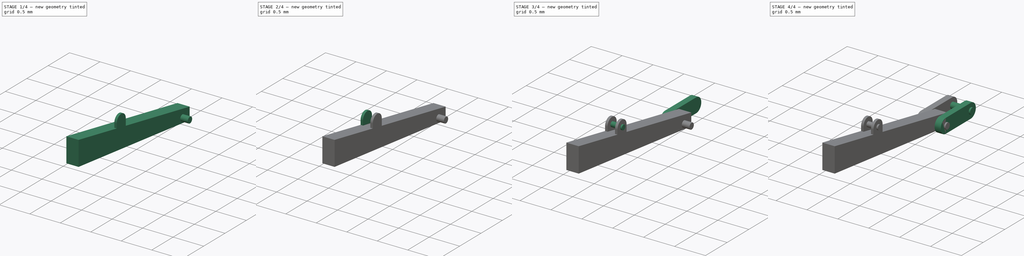
[diagram: build sequence overview — one tinted view per stage of 4, left to right]
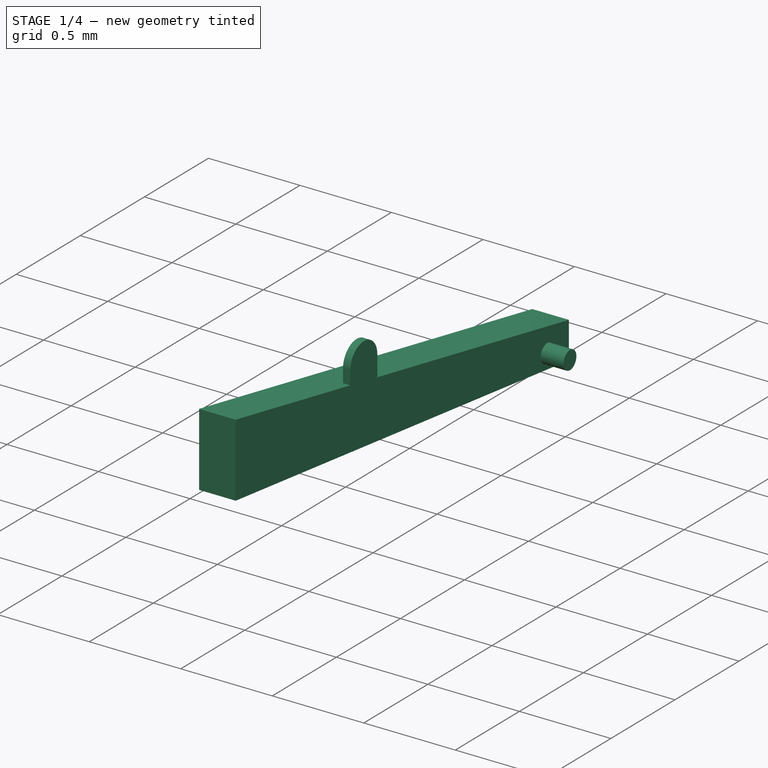
[diagram: stage 1 of 4 — iso view after this stage's code; geometry added in this stage tinted green]
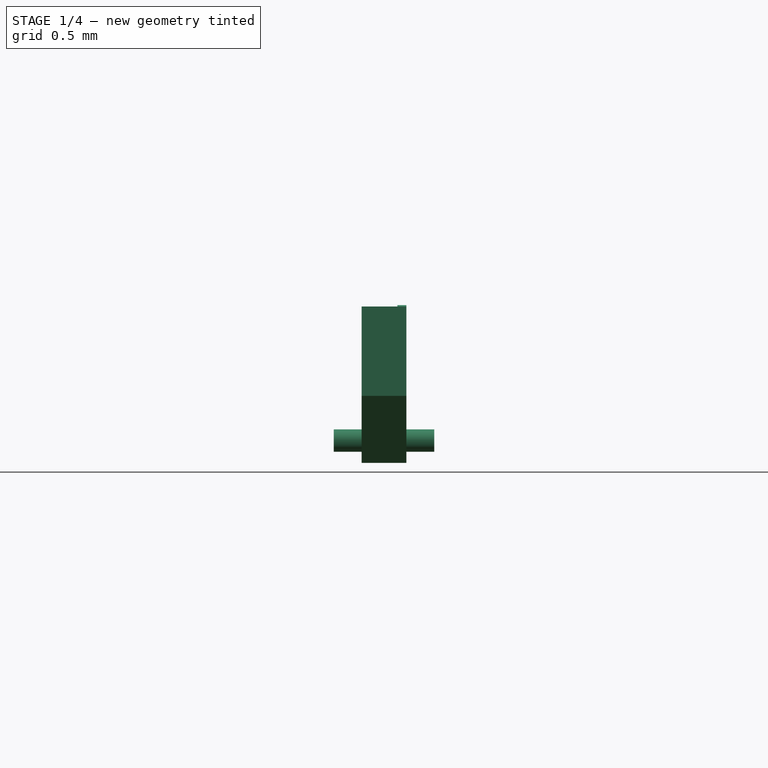
[diagram: stage 1 of 4 — front view after this stage's code; geometry added in this stage tinted green]
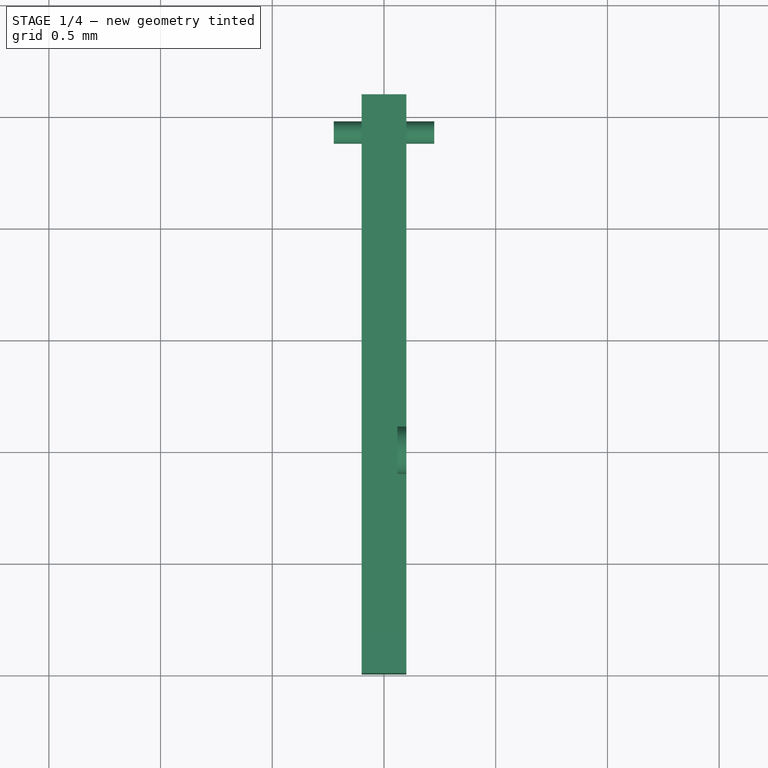
[diagram: stage 1 of 4 — top view after this stage's code; geometry added in this stage tinted green]
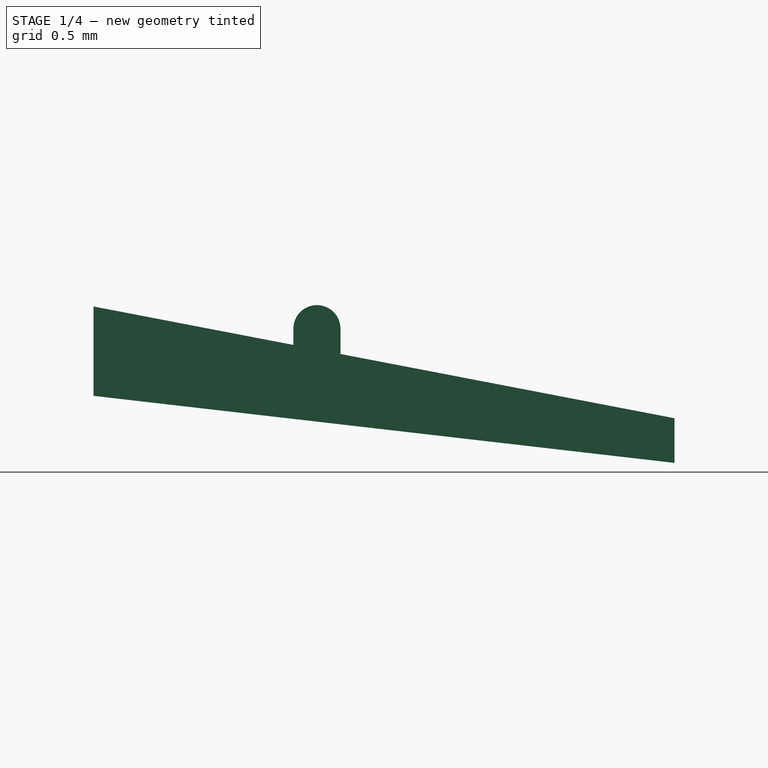
[diagram: stage 1 of 4 — right view after this stage's code; geometry added in this stage tinted green]
FCSTD DOCUMENT  (FreeCAD 0.14R3702 (Git))
Label: boom
License: CC-BY 3.0
LicenseURL: http://creativecommons.org/licenses/by/3.0/
objects: Sketcher::SketchObject×6, PartDesign::Pad×6, Part::Cylinder×3, Part::Fuse×3
note: 24 computed .brp shape members not serialized (recipe doc carries the construction recipe); baked Part::Feature solids carry a one-line shape summary decoded from their .brp

FEATURE [Sketcher::SketchObject] Sketch003
  Placement = pos=(0,0,0) rot=(0.57735,0.57735,0.57735;2.0944rad)
  sketch-geometry (4):
    g0: LineSegment StartX=0 StartY=0.6 StartZ=0 EndX=0 EndY=0.2 EndZ=0
    g1: LineSegment StartX=0 StartY=0.2 StartZ=0 EndX=2.6 EndY=-0.1 EndZ=0
    g2: LineSegment StartX=2.6 StartY=-0.1 StartZ=0 EndX=2.6 EndY=0.1 EndZ=0
    g3: LineSegment StartX=2.6 StartY=0.1 StartZ=0 EndX=0 EndY=0.6 EndZ=0
  constraints (12):
    c: Coincident(g0,g1)
    c: Coincident(g1,g2)
    c: Coincident(g2,g3)
    c: Coincident(g3,g0)
    c: DistanceX(g0) = 0
    c: DistanceY(g0) = 0.6
    c: DistanceX(g0) = 0
    c: DistanceY(g0) = 0.2
    c: DistanceX(g2) = 2.6
    c: DistanceY(g2) = 0.1
    c: DistanceX(g1) = 2.6
    c: DistanceY(g1) = -0.1
FEATURE [PartDesign::Pad] Pad003
  Length = 0.2
  Length2 = 100
  Midplane = true
  Placement = pos=(0,0,0) rot=(0.57735,0.57735,0.57735;2.0944rad)
  Sketch = -> Sketch003
  Type = 0
FEATURE [Sketcher::SketchObject] Sketch004
  Placement = pos=(0.06,0,0) rot=(0.57735,0.57735,0.57735;2.0944rad)
  sketch-geometry (4):
    g0: ArcOfCircle CenterX=0.999811 CenterY=0.50089 CenterZ=0 NormalX=0 NormalY=0 NormalZ=1 Radius=0.105299 StartAngle=6.28319 EndAngle=9.42478
    g1: ArcOfCircle CenterX=0.999811 CenterY=0.396579 CenterZ=0 NormalX=0 NormalY=0 NormalZ=1 Radius=0.105299 StartAngle=3.14159 EndAngle=6.28319
    g2: LineSegment StartX=0.894512 StartY=0.50089 StartZ=0 EndX=0.894512 EndY=0.396579 EndZ=0
    g3: LineSegment StartX=1.10511 StartY=0.50089 StartZ=0 EndX=1.10511 EndY=0.396579 EndZ=0
  constraints (10):
    c: Tangent(g0,g2)
    c: Tangent(g0,g3)
    c: Tangent(g1,g2)
    c: Tangent(g1,g3)
    c: Coincident(g0,g3)
    c: Coincident(g0,g2)
    c: Coincident(g2,g1)
    c: Coincident(g3,g1)
    c: Vertical(g2)
    c: Equal(g0,g1)
FEATURE [PartDesign::Pad] Pad004
  Length = 0.04
  Length2 = 100
  Placement = pos=(0.06,0,0) rot=(0.57735,0.57735,0.57735;2.0944rad)
  Sketch = -> Sketch004
  Type = 0
FEATURE [Part::Cylinder] Cylinder
  Angle = 360
  Height = 0.45
  Placement = pos=(-0.225,2.43,0) rot=(0.57735,0.57735,0.57735;2.0944rad)
  Radius = 0.05
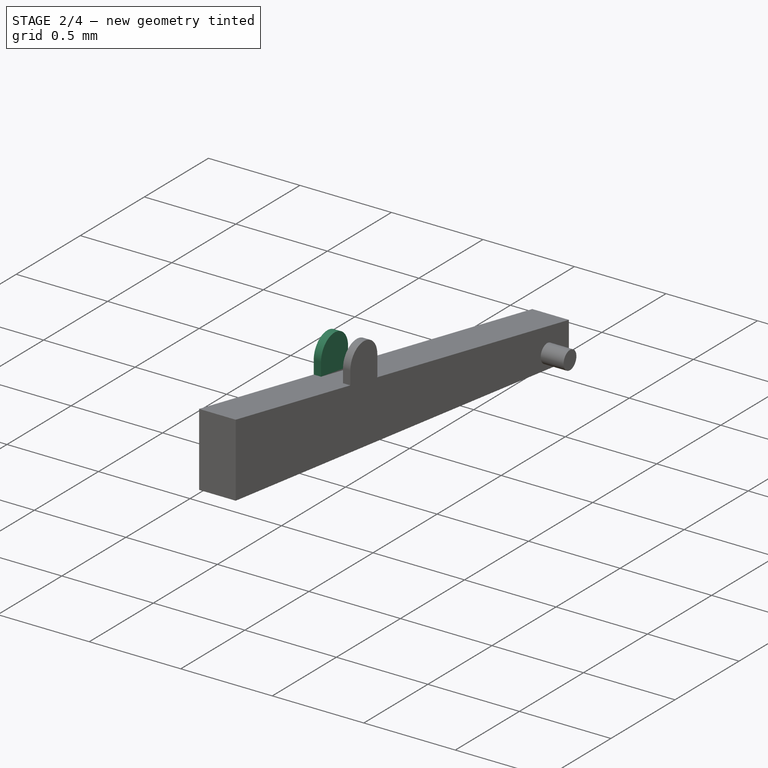
[diagram: stage 2 of 4 — iso view after this stage's code; geometry added in this stage tinted green]
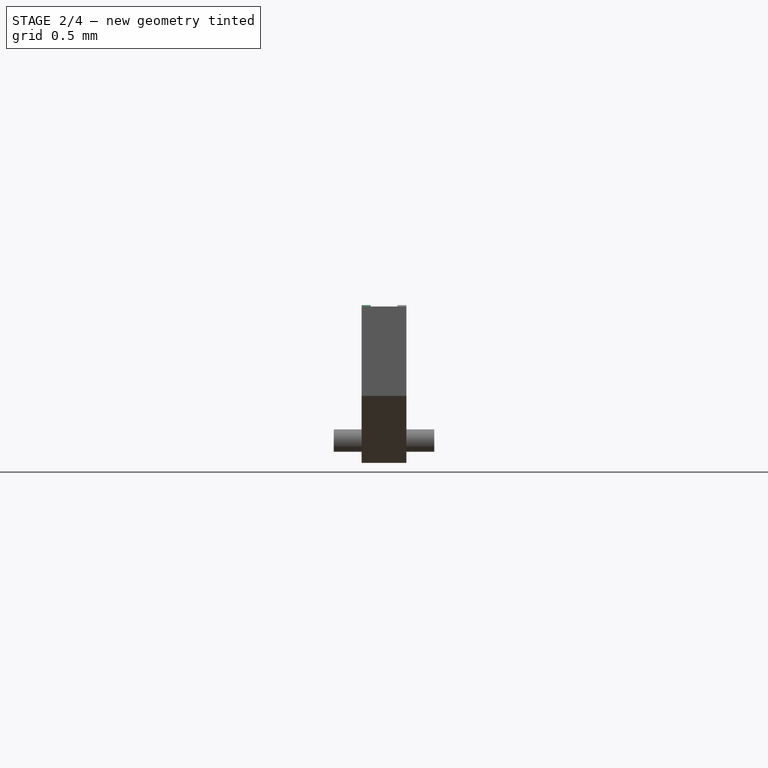
[diagram: stage 2 of 4 — front view after this stage's code; geometry added in this stage tinted green]
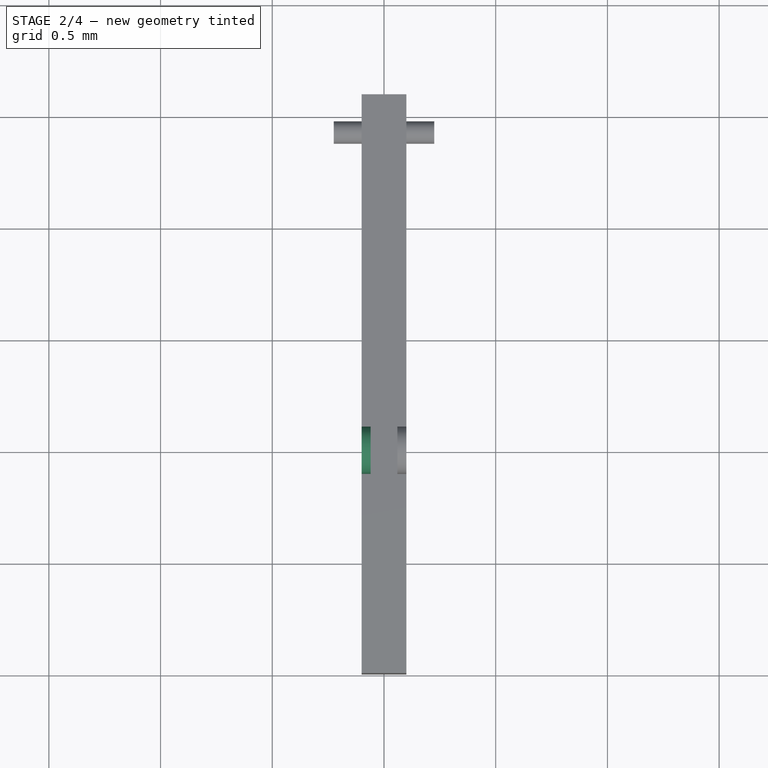
[diagram: stage 2 of 4 — top view after this stage's code; geometry added in this stage tinted green]
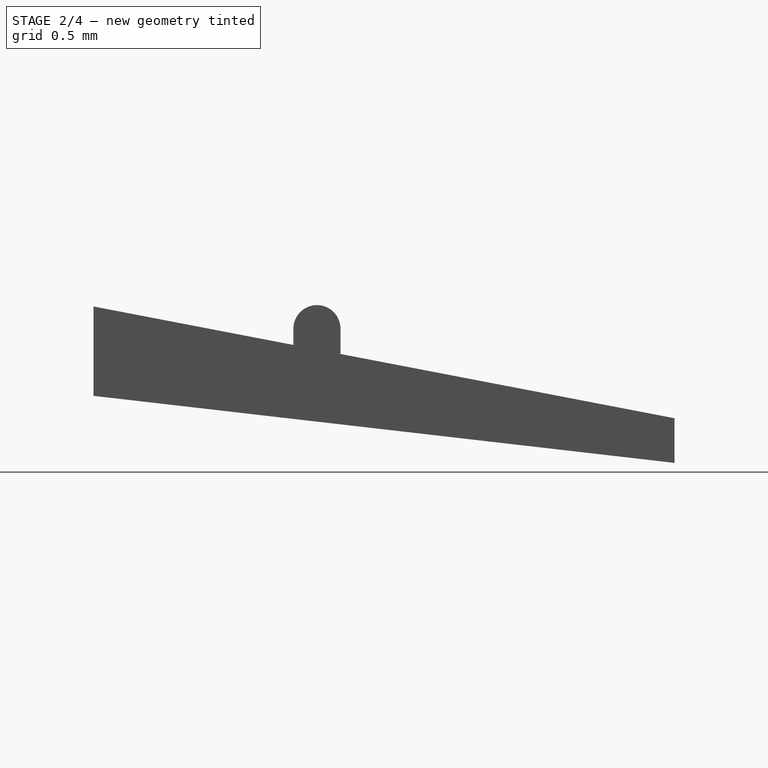
[diagram: stage 2 of 4 — right view after this stage's code; geometry added in this stage tinted green]
FEATURE [Sketcher::SketchObject] Sketch005
  Placement = pos=(-0.1,0,0) rot=(0.57735,0.57735,0.57735;2.0944rad)
  sketch-geometry (4):
    g0: ArcOfCircle CenterX=0.999811 CenterY=0.50089 CenterZ=0 NormalX=0 NormalY=0 NormalZ=1 Radius=0.105299 StartAngle=6.28319 EndAngle=9.42478
    g1: ArcOfCircle CenterX=0.999811 CenterY=0.396579 CenterZ=0 NormalX=0 NormalY=0 NormalZ=1 Radius=0.105299 StartAngle=3.14159 EndAngle=6.28319
    g2: LineSegment StartX=0.894512 StartY=0.50089 StartZ=0 EndX=0.894512 EndY=0.396579 EndZ=0
    g3: LineSegment StartX=1.10511 StartY=0.50089 StartZ=0 EndX=1.10511 EndY=0.396579 EndZ=0
  constraints (10):
    c: Tangent(g0,g2)
    c: Tangent(g0,g3)
    c: Tangent(g1,g2)
    c: Tangent(g1,g3)
    c: Coincident(g0,g3)
    c: Coincident(g0,g2)
    c: Coincident(g2,g1)
    c: Coincident(g3,g1)
    c: Vertical(g2)
    c: Equal(g0,g1)
FEATURE [PartDesign::Pad] Pad005
  Length = 0.04
  Length2 = 100
  Placement = pos=(-0.1,0,0) rot=(0.57735,0.57735,0.57735;2.0944rad)
  Sketch = -> Sketch005
  Type = 0
FEATURE [Part::Fuse] Fusion
  Base = -> Pad003
  Tool = -> Pad004
FEATURE [Part::Fuse] Fusion002
  Base = -> Pad005
  Tool = -> Fusion
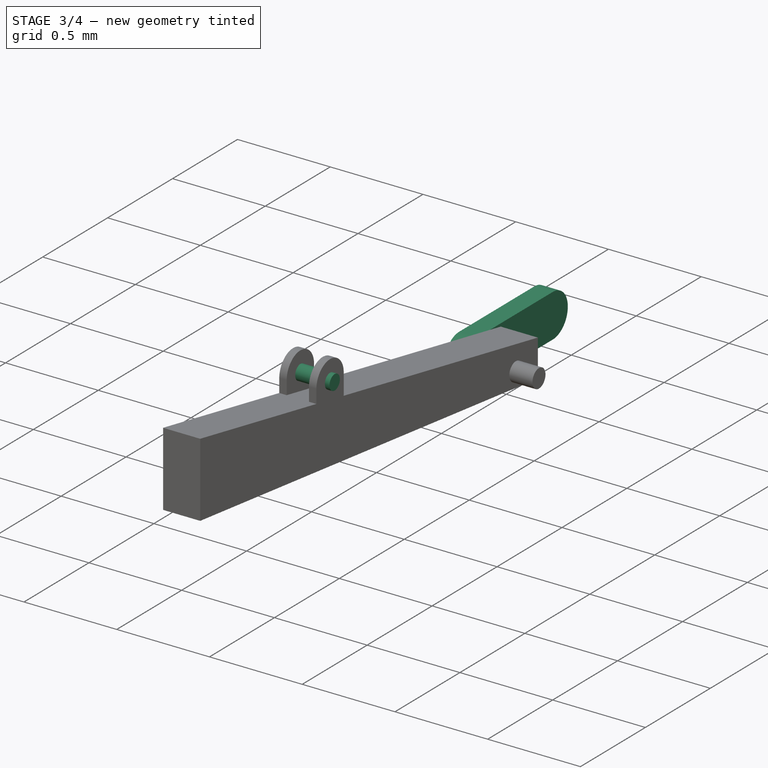
[diagram: stage 3 of 4 — iso view after this stage's code; geometry added in this stage tinted green]
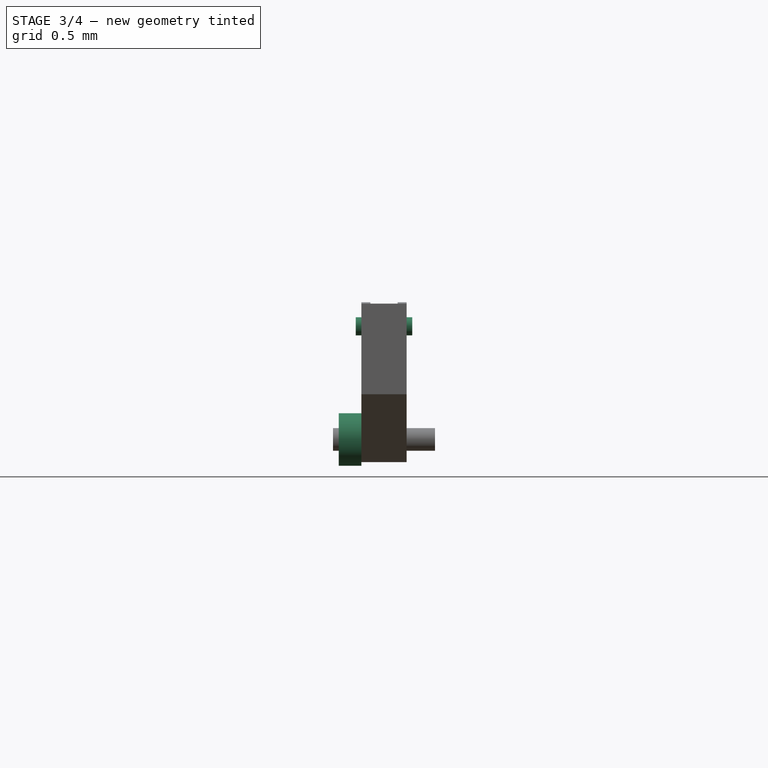
[diagram: stage 3 of 4 — front view after this stage's code; geometry added in this stage tinted green]
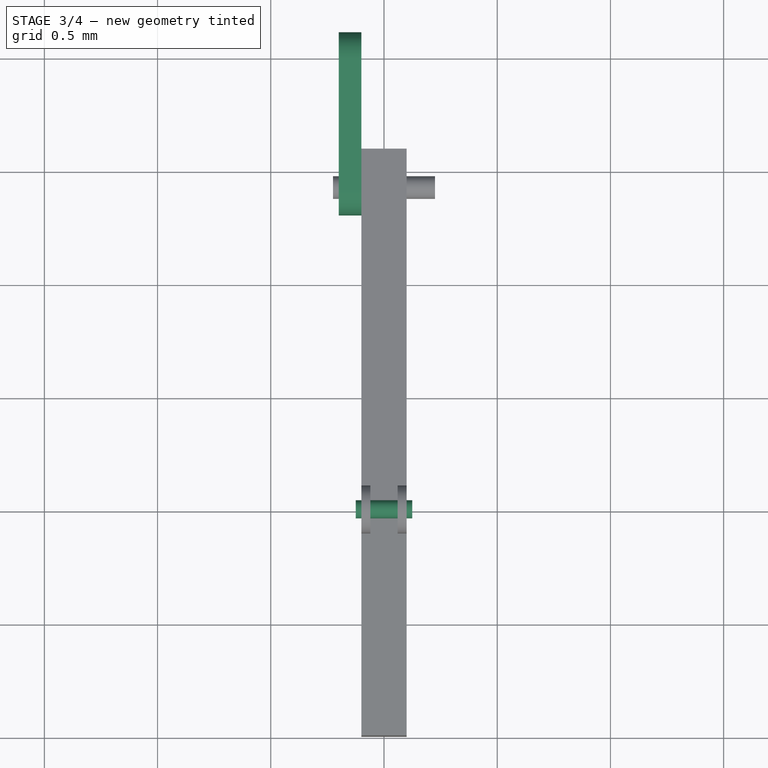
[diagram: stage 3 of 4 — top view after this stage's code; geometry added in this stage tinted green]
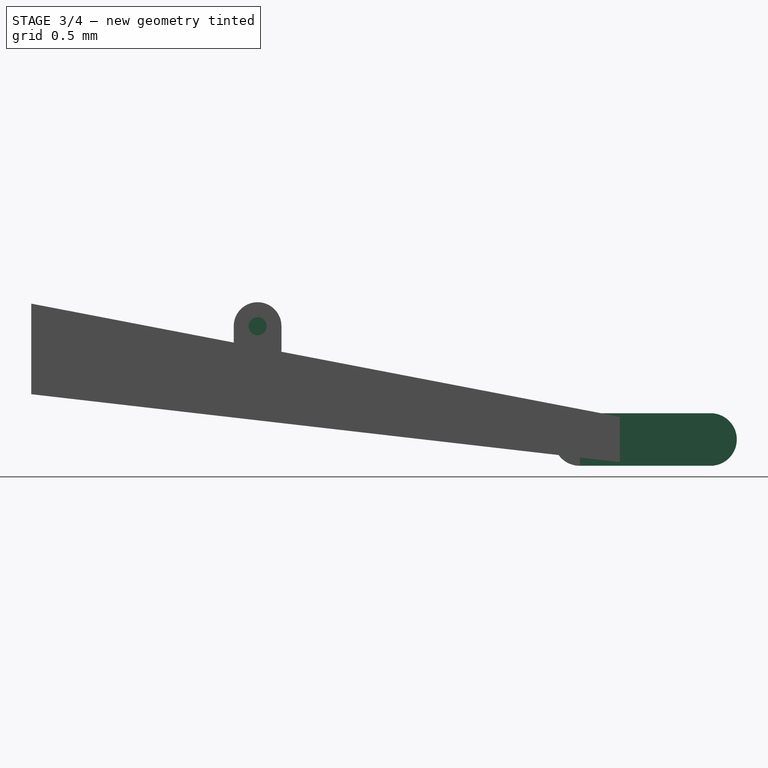
[diagram: stage 3 of 4 — right view after this stage's code; geometry added in this stage tinted green]
FEATURE [Sketcher::SketchObject] Sketch002
  Placement = pos=(-0.2,0,0) rot=(0.57735,0.57735,0.57735;2.0944rad)
  sketch-geometry (4):
    g0: ArcOfCircle CenterX=2.42285 CenterY=0 CenterZ=0 NormalX=0 NormalY=0 NormalZ=1 Radius=0.116102 StartAngle=1.5708 EndAngle=4.71239
    g1: ArcOfCircle CenterX=3.00001 CenterY=0 CenterZ=0 NormalX=0 NormalY=0 NormalZ=1 Radius=0.116102 StartAngle=4.71239 EndAngle=7.85398
    g2: LineSegment StartX=2.42285 StartY=-0.116102 StartZ=0 EndX=3.00001 EndY=-0.116102 EndZ=0
    g3: LineSegment StartX=2.42285 StartY=0.116102 StartZ=0 EndX=3.00001 EndY=0.116102 EndZ=0
  constraints (11):
    c: Tangent(g0,g2)
    c: Tangent(g0,g3)
    c: Tangent(g1,g2)
    c: Tangent(g1,g3)
    c: Coincident(g0,g3)
    c: Coincident(g0,g2)
    c: Coincident(g2,g1)
    c: Coincident(g3,g1)
    c: Horizontal(g2)
    c: Equal(g0,g1)
    c: Perpendicular(g1,g-1)
FEATURE [PartDesign::Pad] Pad002
  Length = 0.1
  Length2 = 100
  Placement = pos=(-0.2,0,0) rot=(0.57735,0.57735,0.57735;2.0944rad)
  Sketch = -> Sketch002
  Type = 0
FEATURE [Part::Cylinder] Cylinder003
  Angle = 360
  Height = 0.25
  Placement = pos=(-0.125,1,0.5) rot=(0.57735,0.57735,0.57735;2.0944rad)
  Radius = 0.04
FEATURE [Part::Fuse] Fusion001
  Base = -> Pad005
  Tool = -> Fusion
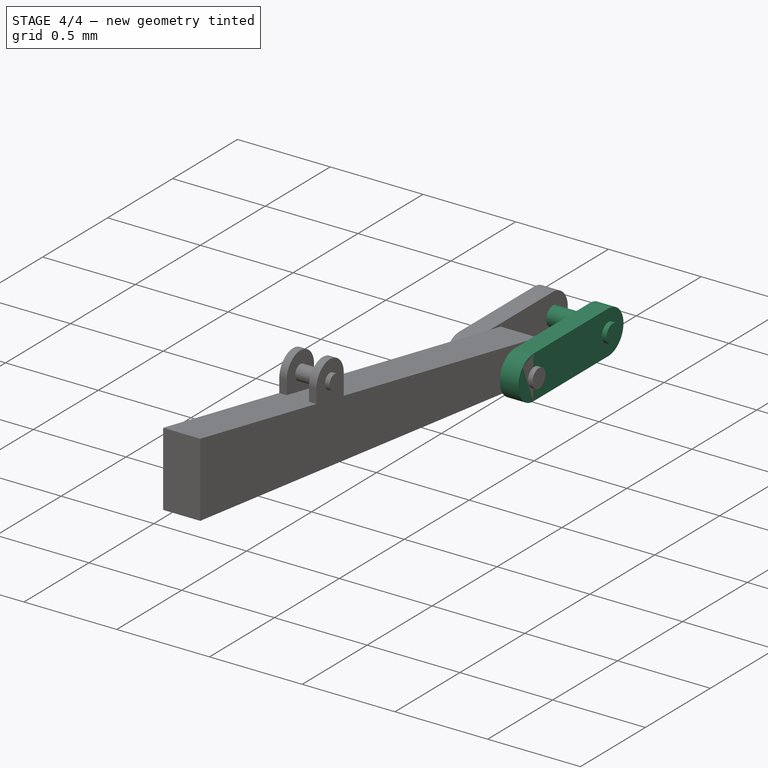
[diagram: stage 4 of 4 — iso view after this stage's code; geometry added in this stage tinted green]
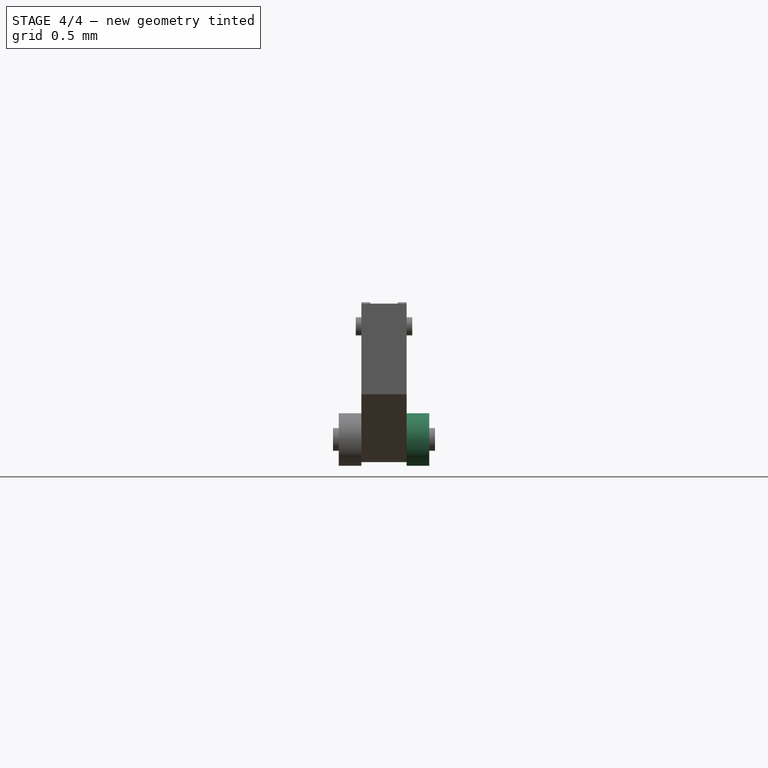
[diagram: stage 4 of 4 — front view after this stage's code; geometry added in this stage tinted green]
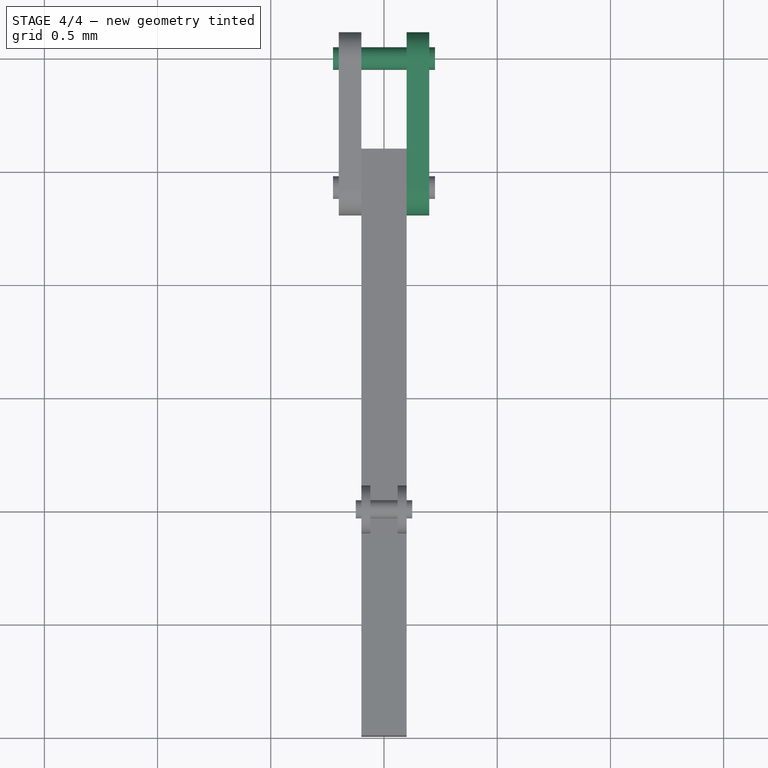
[diagram: stage 4 of 4 — top view after this stage's code; geometry added in this stage tinted green]
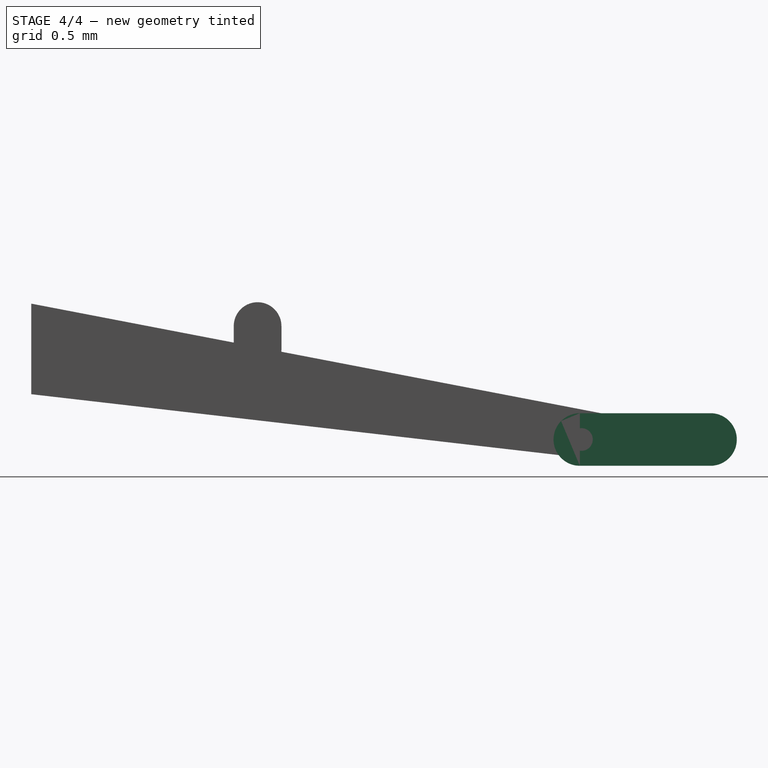
[diagram: stage 4 of 4 — right view after this stage's code; geometry added in this stage tinted green]
FEATURE [Sketcher::SketchObject] Sketch
  Placement = pos=(0,0,0) rot=(0.57735,0.57735,0.57735;2.0944rad)
  sketch-geometry (4):
    g0: LineSegment StartX=0 StartY=0.6 StartZ=0 EndX=0 EndY=0.2 EndZ=0
    g1: LineSegment StartX=0 StartY=0.2 StartZ=0 EndX=2.6 EndY=-0.1 EndZ=0
    g2: LineSegment StartX=2.6 StartY=-0.1 StartZ=0 EndX=2.6 EndY=0.1 EndZ=0
    g3: LineSegment StartX=2.6 StartY=0.1 StartZ=0 EndX=0 EndY=0.6 EndZ=0
  constraints (12):
    c: Coincident(g0,g1)
    c: Coincident(g1,g2)
    c: Coincident(g2,g3)
    c: Coincident(g3,g0)
    c: DistanceX(g0) = 0
    c: DistanceY(g0) = 0.6
    c: DistanceX(g0) = 0
    c: DistanceY(g0) = 0.2
    c: DistanceX(g2) = 2.6
    c: DistanceY(g2) = 0.1
    c: DistanceX(g1) = 2.6
    c: DistanceY(g1) = -0.1
FEATURE [PartDesign::Pad] Pad
  Length = 0.2
  Length2 = 100
  Midplane = true
  Placement = pos=(0,0,0) rot=(0.57735,0.57735,0.57735;2.0944rad)
  Sketch = -> Sketch
  Type = 0
FEATURE [Sketcher::SketchObject] Sketch001
  Placement = pos=(0.1,0,0) rot=(0.57735,0.57735,0.57735;2.0944rad)
  sketch-geometry (4):
    g0: ArcOfCircle CenterX=2.42285 CenterY=0 CenterZ=0 NormalX=0 NormalY=0 NormalZ=1 Radius=0.116102 StartAngle=1.57079 EndAngle=4.71239
    g1: ArcOfCircle CenterX=3.00001 CenterY=0 CenterZ=0 NormalX=0 NormalY=0 NormalZ=1 Radius=0.116102 StartAngle=4.71239 EndAngle=7.85398
    g2: LineSegment StartX=2.42285 StartY=-0.116102 StartZ=0 EndX=3.00001 EndY=-0.116102 EndZ=0
    g3: LineSegment StartX=2.42285 StartY=0.116102 StartZ=0 EndX=3.00001 EndY=0.116102 EndZ=0
  constraints (11):
    c: Tangent(g0,g2)
    c: Tangent(g0,g3)
    c: Tangent(g1,g2)
    c: Tangent(g1,g3)
    c: Coincident(g0,g3)
    c: Coincident(g0,g2)
    c: Coincident(g2,g1)
    c: Coincident(g3,g1)
    c: Horizontal(g2)
    c: Equal(g0,g1)
    c: Perpendicular(g-1,g0)
FEATURE [PartDesign::Pad] Pad001
  Length = 0.1
  Length2 = 100
  Placement = pos=(0.1,0,0) rot=(0.57735,0.57735,0.57735;2.0944rad)
  Sketch = -> Sketch001
  Type = 0
FEATURE [Part::Cylinder] Cylinder001
  Angle = 360
  Height = 0.45
  Placement = pos=(-0.225,3,0) rot=(0.57735,0.57735,0.57735;2.0944rad)
  Radius = 0.05
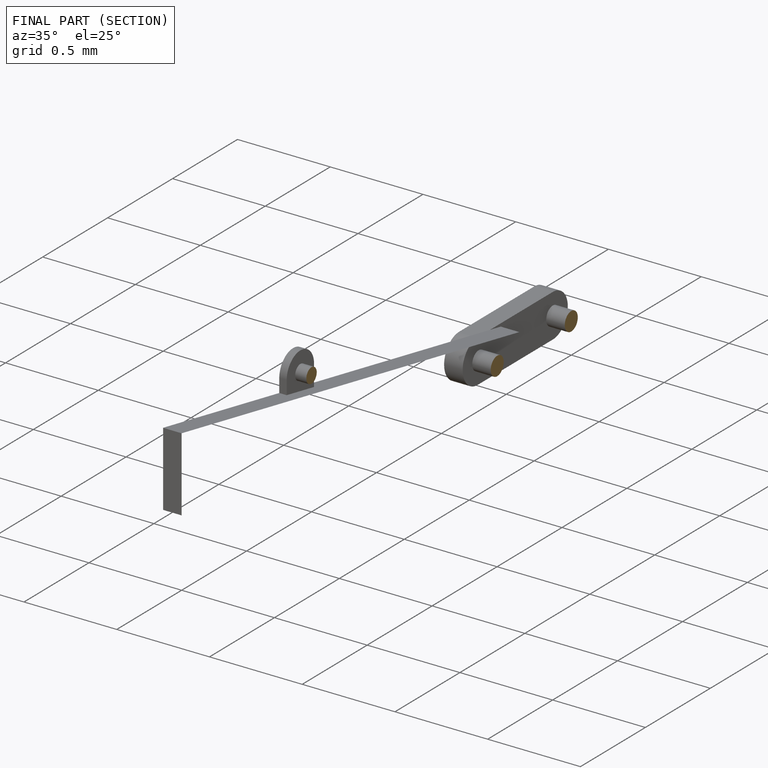
[diagram: finished part — half-section view (interior)]
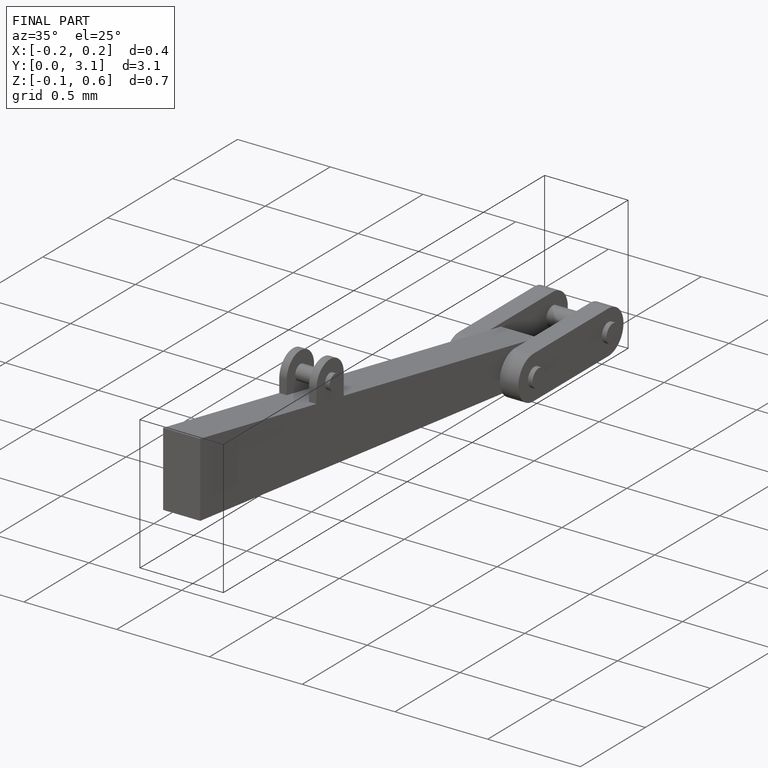
[diagram: finished part — iso view with bounding-box wireframe]
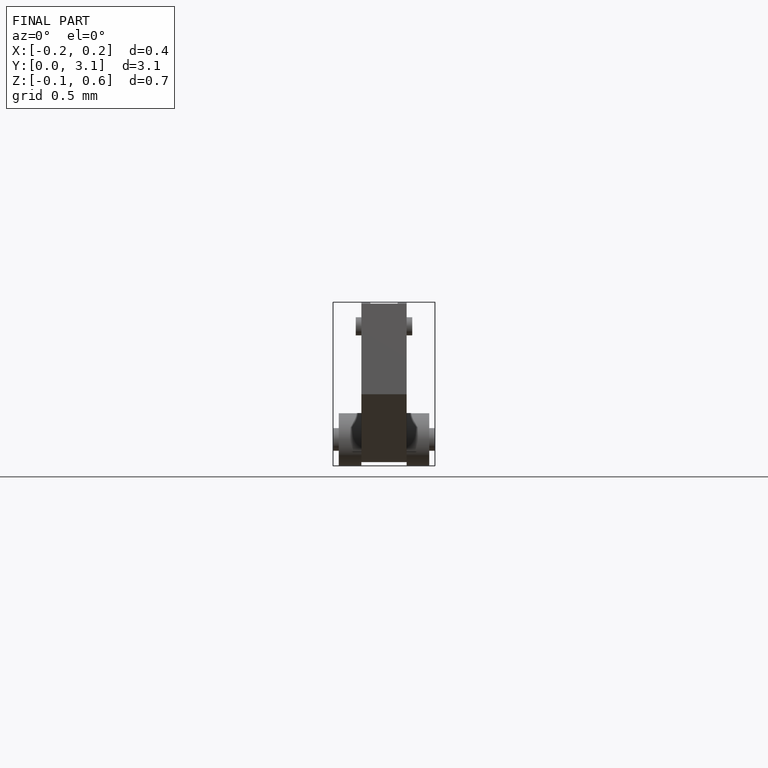
[diagram: finished part — front view with bounding-box wireframe]
